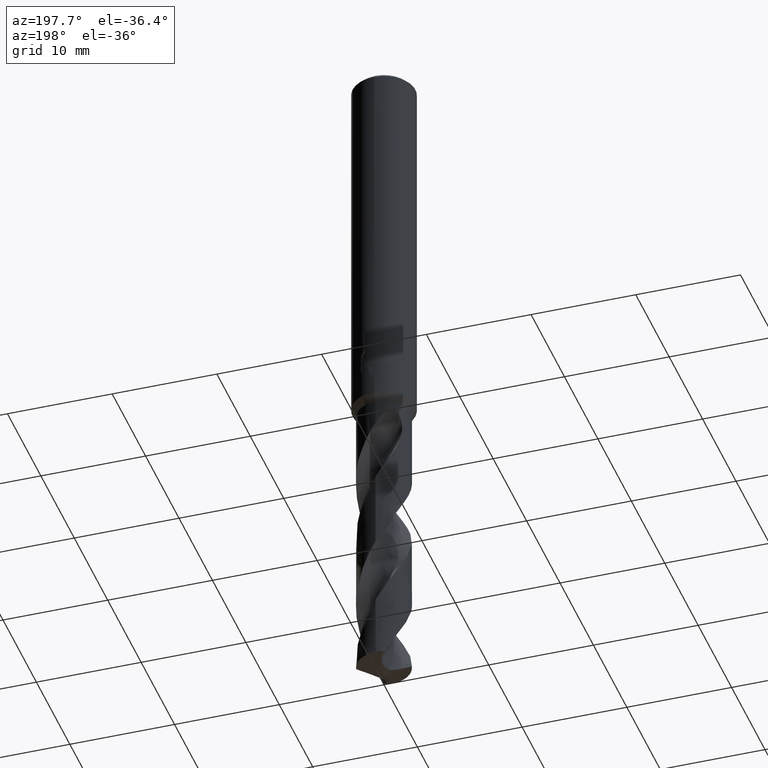
[diagram: clean part render]
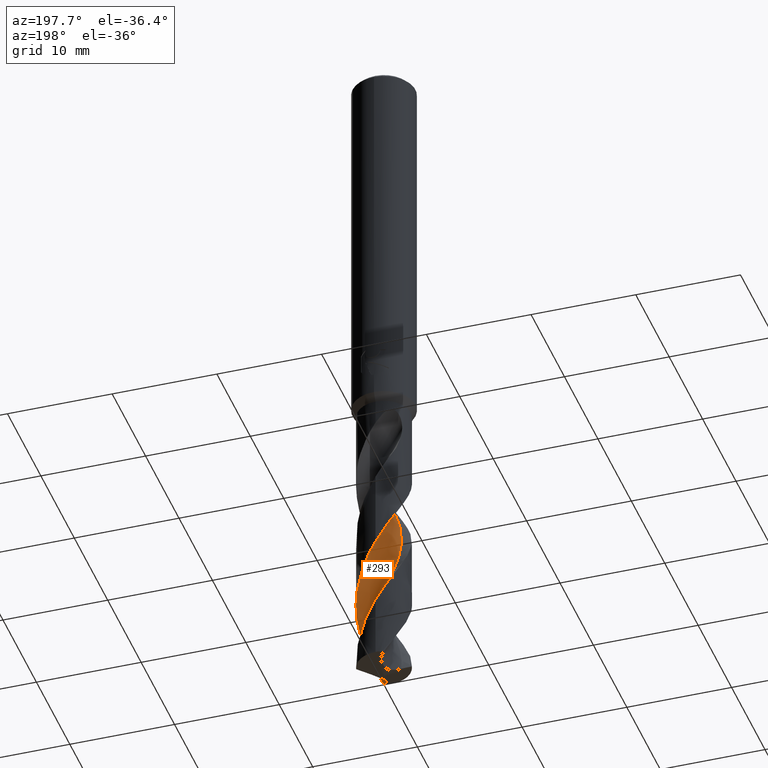
[diagram: same view with one face highlighted and labeled with its STEP entity id]
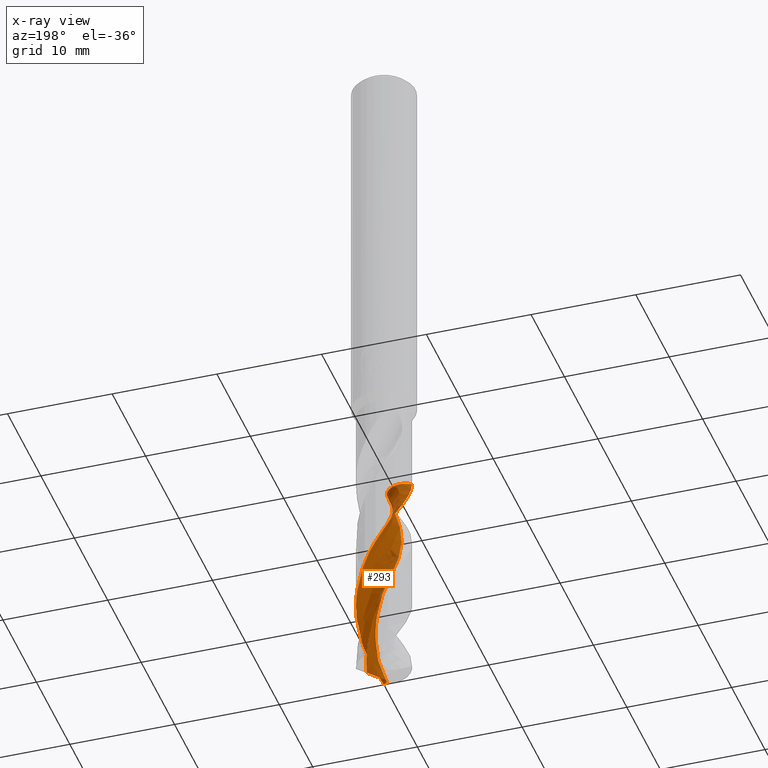
[diagram: x-ray of the same camera — body ghosted, the highlighted face saturated]
A machine part, auxiliary view. The second image highlights one B-rep face of the part: STEP entity #293.
The next image is the same camera in x-ray: the body ghosted, the highlighted face saturated — about 0% of this face is hidden behind the body in this view.
In plain terms, the highlighted face is a freeform B-spline surface patch.
Its self-contained STEP definition (entity closure, byte-faithful):
#287=EDGE_CURVE('',#509,#431,#810,.T.);
#293=ADVANCED_FACE('',(#816),#817,.F.);
#323=EDGE_CURVE('',#431,#733,#849,.T.);
#381=EDGE_CURVE('',#737,#509,#909,.T.);
#431=VERTEX_POINT('',#966);
#467=VERTEX_POINT('',#1006);
#509=VERTEX_POINT('',#1051);
#521=EDGE_CURVE('',#467,#737,#1065,.T.);
#593=EDGE_CURVE('',#733,#467,#1146,.T.);
#733=VERTEX_POINT('',#1300);
#737=VERTEX_POINT('',#1304);
#810=B_SPLINE_CURVE_WITH_KNOTS('',3,(#1374,#1375,#1376,#1377,#1378,#1379,#1380,#1381,#1382,#1383,#1384,#1385,#1386,#1387,#1388,#1389,#1390,#1391,#1392,#1393,#1394,#1395,#1396,#1397,#1398,#1399,#1400,#1401,#1402,#1403,#1404,#1405,#1406,#1407,#1408,#1409,#1410,#1411,#1412,#1413,#1414,#1415,#1416,#1417,#1418,#1419,#1420,#1421,#1422,#1423,#1424,#1425,#1426,#1427,#1428,#1429,#1430,#1431,#1432,#1433,#1434,#1435),.UNSPECIFIED.,.F.,.F.,(4,2,2,2,2,2,2,2,2,2,2,2,2,2,2,2,2,2,2,2,2,2,2,2,2,2,2,2,2,2,4),(0.0,0.973739436127836,2.32965119518938,2.54896821320102,4.15997326721761,4.19445712639335,5.87819121262056,5.97879634722335,7.05052223187904,7.43641080196372,7.83598952684722,9.37010563366563,9.58068647943678,11.09902579308,11.3326802364308,12.846458184252,13.0944793267504,14.6189399113665,14.8515527838146,16.3470004208488,16.5954426426628,17.4224008078032,17.8381561960623,18.6145384535525,19.9793050859473,20.043079232453,21.0521618834251,21.4307487667855,22.0919819568146,23.0869670029948,24.077534446617),.UNSPECIFIED.);
#816=FACE_OUTER_BOUND('',#1449,.T.);
#817=B_SPLINE_SURFACE_WITH_KNOTS('',3,3,((#1450,#1451,#1452,#1453,#1454,#1455,#1456,#1457,#1458,#1459,#1460,#1461,#1462,#1463,#1464,#1465,#1466,#1467,#1468,#1469,#1470,#1471,#1472,#1473,#1474,#1475,#1476,#1477,#1478,#1479,#1480,#1481,#1482,#1483,#1484,#1485,#1486,#1487,#1488),(#1489,#1490,#1491,#1492,#1493,#1494,#1495,#1496,#1497,#1498,#1499,#1500,#1501,#1502,#1503,#1504,#1505,#1506,#1507,#1508,#1509,#1510,#1511,#1512,#1513,#1514,#1515,#1516,#1517,#1518,#1519,#1520,#1521,#1522,#1523,#1524,#1525,#1526,#1527),(#1528,#1529,#1530,#1531,#1532,#1533,#1534,#1535,#1536,#1537,#1538,#1539,#1540,#1541,#1542,#1543,#1544,#1545,#1546,#1547,#1548,#1549,#1550,#1551,#1552,#1553,#1554,#1555,#1556,#1557,#1558,#1559,#1560,#1561,#1562,#1563,#1564,#1565,#1566),(#1567,#1568,#1569,#1570,#1571,#1572,#1573,#1574,#1575,#1576,#1577,#1578,#1579,#1580,#1581,#1582,#1583,#1584,#1585,#1586,#1587,#1588,#1589,#1590,#1591,#1592,#1593,#1594,#1595,#1596,#1597,#1598,#1599,#1600,#1601,#1602,#1603,#1604,#1605),(#1606,#1607,#1608,#1609,#1610,#1611,#1612,#1613,#1614,#1615,#1616,#1617,#1618,#1619,#1620,#1621,#1622,#1623,#1624,#1625,#1626,#1627,#1628,#1629,#1630,#1631,#1632,#1633,#1634,#1635,#1636,#1637,#1638,#1639,#1640,#1641,#1642,#1643,#1644),(#1645,#1646,#1647,#1648,#1649,#1650,#1651,#1652,#1653,#1654,#1655,#1656,#1657,#1658,#1659,#1660,#1661,#1662,#1663,#1664,#1665,#1666,#1667,#1668,#1669,#1670,#1671,#1672,#1673,#1674,#1675,#1676,#1677,#1678,#1679,#1680,#1681,#1682,#1683),(#1684,#1685,#1686,#1687,#1688,#1689,#1690,#1691,#1692,#1693,#1694,#1695,#1696,#1697,#1698,#1699,#1700,#1701,#1702,#1703,#1704,#1705,#1706,#1707,#1708,#1709,#1710,#1711,#1712,#1713,#1714,#1715,#1716,#1717,#1718,#1719,#1720,#1721,#1722),(#1723,#1724,#1725,#1726,#1727,#1728,#1729,#1730,#1731,#1732,#1733,#1734,#1735,#1736,#1737,#1738,#1739,#1740,#1741,#1742,#1743,#1744,#1745,#1746,#1747,#1748,#1749,#1750,#1751,#1752,#1753,#1754,#1755,#1756,#1757,#1758,#1759,#1760,#1761),(#1762,#1763,#1764,#1765,#1766,#1767,#1768,#1769,#1770,#1771,#1772,#1773,#1774,#1775,#1776,#1777,#1778,#1779,#1780,#1781,#1782,#1783,#1784,#1785,#1786,#1787,#1788,#1789,#1790,#1791,#1792,#1793,#1794,#1795,#1796,#1797,#1798,#1799,#1800),(#1801,#1802,#1803,#1804,#1805,#1806,#1807,#1808,#1809,#1810,#1811,#1812,#1813,#1814,#1815,#1816,#1817,#1818,#1819,#1820,#1821,#1822,#1823,#1824,#1825,#1826,#1827,#1828,#1829,#1830,#1831,#1832,#1833,#1834,#1835,#1836,#1837,#1838,#1839),(#1840,#1841,#1842,#1843,#1844,#1845,#1846,#1847,#1848,#1849,#1850,#1851,#1852,#1853,#1854,#1855,#1856,#1857,#1858,#1859,#1860,#1861,#1862,#1863,#1864,#1865,#1866,#1867,#1868,#1869,#1870,#1871,#1872,#1873,#1874,#1875,#1876,#1877,#1878)),.UNSPECIFIED.,.F.,.F.,.F.,(4,1,1,1,1,1,1,1,4),(4,1,2,2,2,2,2,2,2,2,2,2,2,2,2,2,2,2,2,4),(-5.40881827744282E-017,0.392701793329559,0.785403586659118,1.17810537998868,1.57080717331824,1.96350896664779,2.35621075997735,2.74891255330691,3.14161434663647),(0.0,0.48484074373811,0.96968148747622,1.93936297495244,2.90904446242866,3.87872594990488,5.81808892485732,7.75745189980976,9.6968148747622,11.6361778497146,13.5755408246671,15.5149037996195,17.454266774572,19.3936297495244,21.3329927244768,23.2723556994293,25.2117186743817,27.1510816493342,29.0904446242866,31.029807599239),.UNSPECIFIED.);
#849=B_SPLINE_CURVE_WITH_KNOTS('',3,(#1955,#1956,#1957,#1958,#1959,#1960,#1961,#1962,#1963,#1964,#1965,#1966,#1967,#1968,#1969,#1970,#1971,#1972,#1973,#1974),.UNSPECIFIED.,.F.,.F.,(4,2,2,2,2,2,2,2,2,4),(-5.35531806765965,-5.00114860710339,-4.64691808302809,-3.98253738823736,-3.31822643693531,-2.65423719746501,-1.99063438491092,-1.32725488938462,-0.66379863336662,-0.0),.UNSPECIFIED.);
#909=B_SPLINE_CURVE_WITH_KNOTS('',3,(#2581,#2582,#2583,#2584,#2585,#2586,#2587,#2588,#2589,#2590,#2591,#2592,#2593,#2594,#2595,#2596,#2597,#2598,#2599,#2600,#2601,#2602,#2603,#2604,#2605,#2606,#2607,#2608,#2609,#2610,#2611,#2612,#2613,#2614,#2615,#2616,#2617,#2618,#2619,#2620,#2621,#2622,#2623,#2624,#2625,#2626,#2627,#2628,#2629,#2630,#2631,#2632,#2633,#2634,#2635,#2636,#2637,#2638,#2639,#2640,#2641,#2642),.UNSPECIFIED.,.F.,.F.,(4,2,2,2,2,2,2,2,2,2,2,2,2,2,2,2,2,2,2,2,2,2,2,2,2,2,2,2,2,2,4),(0.0,0.973739436127836,2.32965119518938,2.54896821320102,4.15997326721761,4.19445712639335,5.87819121262056,5.97879634722335,7.05052223187904,7.43641080196372,7.83598952684722,9.37010563366563,9.58068647943678,11.09902579308,11.3326802364308,12.846458184252,13.0944793267504,14.6189399113665,14.8515527838146,16.3470004208488,16.5954426426628,17.4224008078032,17.8381561960623,18.6145384535525,19.9793050859473,20.043079232453,21.0521618834251,21.4307487667855,22.0919819568146,23.0869670029948,24.077534446617),.UNSPECIFIED.);
#966=CARTESIAN_POINT('',(-2.45163694437292,-0.701046672574818,-44.405));
#1006=CARTESIAN_POINT('',(1.59616637994865,0.170764390680774,-65.4157277089444));
#1051=CARTESIAN_POINT('',(-5.48515047849248E-015,2.54993953751047,-52.5731450981478));
#1065=B_SPLINE_CURVE_WITH_KNOTS('',3,(#4174,#4175,#4176,#4177,#4178,#4179,#4180,#4181,#4182,#4183,#4184,#4185,#4186,#4187,#4188,#4189,#4190,#4191,#4192,#4193),.UNSPECIFIED.,.F.,.F.,(4,2,2,2,2,2,2,2,2,4),(0.0,1.06206867309185,1.78393141241741,2.46979322490583,3.23913797733199,4.07458475473371,5.01902752822248,6.07488704052321,6.70908508049796,7.34303042592719),.UNSPECIFIED.);
#1146=B_SPLINE_CURVE_WITH_KNOTS('',3,(#4872,#4873,#4874,#4875,#4876,#4877,#4878,#4879,#4880,#4881,#4882,#4883,#4884,#4885,#4886,#4887,#4888,#4889,#4890,#4891,#4892,#4893,#4894,#4895,#4896,#4897,#4898,#4899,#4900,#4901,#4902,#4903,#4904,#4905,#4906,#4907,#4908,#4909,#4910),.UNSPECIFIED.,.F.,.F.,(4,1,2,2,2,2,2,2,2,2,2,2,2,2,2,2,2,2,2,4),(0.0,0.48484074373811,0.96968148747622,1.93936297495244,2.90904446242866,3.87872594990488,5.81808892485732,7.75745189980976,9.6968148747622,11.6361778497146,13.5755408246671,15.5149037996195,17.454266774572,19.3936297495244,21.3329927244768,23.2723556994293,25.2117186743817,27.1510816493342,29.0904446242866,31.029807599239),.UNSPECIFIED.);
#1300=CARTESIAN_POINT('',(0.242113569617448,-1.58547866104269,-44.405));
#1304=CARTESIAN_POINT('',(0.781501621102599,-2.42729380508706,-65.0718759026212));
#1374=CARTESIAN_POINT('',(0.781501621102603,-2.42729380508706,-65.0718759026212));
#1375=CARTESIAN_POINT('',(0.936654392322793,-2.3773387463327,-64.7911907336629));
#1376=CARTESIAN_POINT('',(1.08586653744853,-2.31286871900473,-64.5083894878095));
#1377=CARTESIAN_POINT('',(1.42391276664532,-2.12728008173716,-63.8378065488846));
#1378=CARTESIAN_POINT('',(1.60559432618969,-1.99374198379501,-63.4529806795277));
#1379=CARTESIAN_POINT('',(1.79373256360754,-1.8128135786547,-63.0000320620304));
#1380=CARTESIAN_POINT('',(1.81936453169177,-1.7870878503702,-62.9369175253481));
#1381=CARTESIAN_POINT('',(2.02896410577869,-1.56752095689746,-62.4103172371844));
#1382=CARTESIAN_POINT('',(2.18167503255085,-1.34675639470443,-61.9548301554897));
#1383=CARTESIAN_POINT('',(2.29981489167362,-1.10149690353406,-61.4813319198318));
#1384=CARTESIAN_POINT('',(2.30227058396431,-1.09635485363102,-61.4714174610817));
#1385=CARTESIAN_POINT('',(2.42407273754086,-0.839089902981069,-60.9763627720417));
#1386=CARTESIAN_POINT('',(2.50122522569896,-0.569237315876879,-60.5008260810699));
#1387=CARTESIAN_POINT('',(2.53508815979425,-0.275645132076071,-59.9872357369814));
#1388=CARTESIAN_POINT('',(2.53683231430039,-0.259100044384307,-59.9582911934222));
#1389=CARTESIAN_POINT('',(2.55528237098295,-0.0659746453769235,-59.6210638042064));
#1390=CARTESIAN_POINT('',(2.55371913673103,0.112170922507938,-59.3152669306704));
#1391=CARTESIAN_POINT('',(2.52626241445098,0.35278373731,-58.8967070281293));
#1392=CARTESIAN_POINT('',(2.51660157207608,0.41611801870754,-58.7859803515778));
#1393=CARTESIAN_POINT('',(2.49214181632538,0.544019140548643,-58.5602670956946));
#1394=CARTESIAN_POINT('',(2.47718934060871,0.608469475602214,-58.4451812391754));
#1395=CARTESIAN_POINT('',(2.39289682659295,0.916907266206064,-57.8900442163269));
#1396=CARTESIAN_POINT('',(2.2899444292485,1.15008178218801,-57.4567733730727));
#1397=CARTESIAN_POINT('',(2.13575751794729,1.39357441301278,-56.9560842845463));
#1398=CARTESIAN_POINT('',(2.11656399660145,1.42255727532211,-56.8956015111814));
#1399=CARTESIAN_POINT('',(1.95375463152658,1.65778330530721,-56.3988520743227));
#1400=CARTESIAN_POINT('',(1.78111890382981,1.84199215194843,-55.9695565195785));
#1401=CARTESIAN_POINT('',(1.55410510959151,2.02200724983044,-55.4664489580129));
#1402=CARTESIAN_POINT('',(1.52332984772112,2.04529237806743,-55.3992930349619));
#1403=CARTESIAN_POINT('',(1.28895527102206,2.21439051708825,-54.897404887428));
#1404=CARTESIAN_POINT('',(1.0655531196271,2.33012132861617,-54.4695135236699));
#1405=CARTESIAN_POINT('',(0.790105702992709,2.42479694101052,-53.963802999333));
#1406=CARTESIAN_POINT('',(0.751070157657841,2.43717013170732,-53.8925395966559));
#1407=CARTESIAN_POINT('',(0.469754300601046,2.51893399000189,-53.383784336762));
#1408=CARTESIAN_POINT('',(0.218843590236288,2.55298415636738,-52.9532368732472));
#1409=CARTESIAN_POINT('',(-0.0713909608392822,2.54922900167262,-52.4491913099461));
#1410=CARTESIAN_POINT('',(-0.109744731785705,2.54786572947821,-52.3824047859271));
#1411=CARTESIAN_POINT('',(-0.394743854888623,2.53128170958264,-51.8866159342418));
#1412=CARTESIAN_POINT('',(-0.637909936871401,2.48118055597771,-51.4641936930429));
#1413=CARTESIAN_POINT('',(-0.908684396783313,2.38288245959634,-50.9642127495431));
#1414=CARTESIAN_POINT('',(-0.946854102314993,2.36797307766679,-50.892909110057));
#1415=CARTESIAN_POINT('',(-1.11046211247109,2.29948227822731,-50.5848290176238));
#1416=CARTESIAN_POINT('',(-1.23207109895561,2.236712443033,-50.3490850058337));
#1417=CARTESIAN_POINT('',(-1.40670196089163,2.12792283262497,-49.9935993826759));
#1418=CARTESIAN_POINT('',(-1.46359117710635,2.0891988761234,-49.8747933347799));
#1419=CARTESIAN_POINT('',(-1.6219303879307,1.97178572301406,-49.533633174389));
#1420=CARTESIAN_POINT('',(-1.71900310912138,1.88774680379853,-49.3105739093287));
#1421=CARTESIAN_POINT('',(-1.96822699015388,1.63676673396404,-48.6978806524574));
#1422=CARTESIAN_POINT('',(-2.10494065842658,1.45664980654879,-48.3122750195936));
#1423=CARTESIAN_POINT('',(-2.22131146242342,1.25218294669021,-47.9032234653825));
#1424=CARTESIAN_POINT('',(-2.22644336820325,1.24303512232559,-47.884974498637));
#1425=CARTESIAN_POINT('',(-2.31197198212893,1.08834466670242,-47.577637845967));
#1426=CARTESIAN_POINT('',(-2.37815838371468,0.935042551241771,-47.2905400332395));
#1427=CARTESIAN_POINT('',(-2.44803434222208,0.716312670541916,-46.893727737734));
#1428=CARTESIAN_POINT('',(-2.46487920759324,0.655997593272981,-46.7855521801888));
#1429=CARTESIAN_POINT('',(-2.50498191313688,0.488922723808074,-46.4880711601987));
#1430=CARTESIAN_POINT('',(-2.52361120899432,0.38125819407664,-46.2982588623027));
#1431=CARTESIAN_POINT('',(-2.55286586530009,0.10919565771303,-45.8244515453941));
#1432=CARTESIAN_POINT('',(-2.55459051030163,-0.0555086265221823,-45.5419939333724));
#1433=CARTESIAN_POINT('',(-2.5264015655528,-0.382172497750538,-44.9740259272431));
#1434=CARTESIAN_POINT('',(-2.49673715023633,-0.543345408920365,-44.6882038466516));
#1435=CARTESIAN_POINT('',(-2.45162035553032,-0.701104673448125,-44.4048958367487));
#1449=EDGE_LOOP('',(#7298,#7299,#7300,#7301,#7302));
#1450=CARTESIAN_POINT('',(-1.20208152794642,-3.66708152794642,-41.8606));
#1451=CARTESIAN_POINT('',(-1.30349138101385,-3.66294608213439,-41.9862422635474));
#1452=CARTESIAN_POINT('',(-1.50852161293324,-3.63393677331782,-42.2387676661621));
#1453=CARTESIAN_POINT('',(-1.71337716424821,-3.55195051408445,-42.4920427460695));
#1454=CARTESIAN_POINT('',(-2.01186078911098,-3.38112895662532,-42.8687000090635));
#1455=CARTESIAN_POINT('',(-2.19955465118841,-3.25401348248367,-43.1189245227413));
#1456=CARTESIAN_POINT('',(-2.55407104208126,-2.98027596158837,-43.6214531383877));
#1457=CARTESIAN_POINT('',(-2.72012064470767,-2.83011296306287,-43.8729403910005));
#1458=CARTESIAN_POINT('',(-3.02552181228476,-2.50609801925724,-44.3769905943455));
#1459=CARTESIAN_POINT('',(-3.16408669384434,-2.33035878119049,-44.628831345414));
#1460=CARTESIAN_POINT('',(-3.5281877822512,-1.76645157307641,-45.382719535055));
#1461=CARTESIAN_POINT('',(-3.70920611409306,-1.35191583872799,-45.8854829777772));
#1462=CARTESIAN_POINT('',(-3.91630453241499,-0.481600812299769,-46.8918891174901));
#1463=CARTESIAN_POINT('',(-3.94813143071852,-0.030616169563522,-47.3950031658703));
#1464=CARTESIAN_POINT('',(-3.85116632788341,0.85866681614713,-48.4009594256309));
#1465=CARTESIAN_POINT('',(-3.73002429787826,1.29429721951031,-48.903969419026));
#1466=CARTESIAN_POINT('',(-3.34067260187198,2.09972775268707,-49.9100594507125));
#1467=CARTESIAN_POINT('',(-3.08052183400278,2.46953248434963,-50.4130928193347));
#1468=CARTESIAN_POINT('',(-2.44378709707616,3.09788565728126,-51.4191438216553));
#1469=CARTESIAN_POINT('',(-2.07475442853537,3.35913883109585,-51.9221728212514));
#1470=CARTESIAN_POINT('',(-1.26423288618522,3.73775210176843,-52.9282298636687));
#1471=CARTESIAN_POINT('',(-0.828977238764015,3.86020808280583,-53.4312597217525));
#1472=CARTESIAN_POINT('',(0.0615641295693968,3.94526771587903,-54.4373199963154));
#1473=CARTESIAN_POINT('',(0.512683435718697,3.91476419030396,-54.9403489471673));
#1474=CARTESIAN_POINT('',(1.3802218112718,3.69647057817027,-55.9464106694114));
#1475=CARTESIAN_POINT('',(1.79502898207068,3.5165520608674,-56.4494401070354));
#1476=CARTESIAN_POINT('',(2.53924209049942,3.02014270644842,-57.4554968187327));
#1477=CARTESIAN_POINT('',(2.86976933318261,2.71161287069444,-57.9585274114222));
#1478=CARTESIAN_POINT('',(3.40457253286236,1.9944876888434,-58.9645858928623));
#1479=CARTESIAN_POINT('',(3.61257009555661,1.59301762591955,-59.4676107699854));
#1480=CARTESIAN_POINT('',(3.87609360911204,0.738102061726109,-60.473660851687));
#1481=CARTESIAN_POINT('',(3.93754069393617,0.290132556700374,-60.9767109827951));
#1482=CARTESIAN_POINT('',(3.89925423303863,-0.603594950381508,-61.9828060261193));
#1483=CARTESIAN_POINT('',(3.80695778472295,-1.04612544669751,-62.4857458424195));
#1484=CARTESIAN_POINT('',(3.47197164581853,-1.87558777838338,-63.4916954081419));
#1485=CARTESIAN_POINT('',(3.23665667772898,-2.26213654776372,-63.9950201461653));
#1486=CARTESIAN_POINT('',(2.64009653091144,-2.92942761886629,-65.001042943783));
#1487=CARTESIAN_POINT('',(2.29031978122729,-3.21332628102084,-65.5030510193266));
#1488=CARTESIAN_POINT('',(1.90320118412064,-3.43283692938004,-66.0059349555905));
#1489=CARTESIAN_POINT('',(-1.35942855742924,-3.50972217661457,-41.8606));
#1490=CARTESIAN_POINT('',(-1.46105291410976,-3.50580121797466,-41.9862484444172));
#1491=CARTESIAN_POINT('',(-1.66377792147787,-3.47441425059251,-42.2389202592531));
#1492=CARTESIAN_POINT('',(-1.86040891436461,-3.38473921880621,-42.4924178047704));
#1493=CARTESIAN_POINT('',(-2.14122834065788,-3.19942600203509,-42.8689717932662));
#1494=CARTESIAN_POINT('',(-2.31719887047524,-3.06468435341981,-43.1190256921117));
#1495=CARTESIAN_POINT('',(-2.64910777622979,-2.77864856462025,-43.6214910841967));
#1496=CARTESIAN_POINT('',(-2.80368128072068,-2.62349822507038,-43.8729722027192));
#1497=CARTESIAN_POINT('',(-3.08575283013506,-2.29151905914263,-44.3771625208101));
#1498=CARTESIAN_POINT('',(-3.21210297874282,-2.1126875771185,-44.6290491518197));
#1499=CARTESIAN_POINT('',(-3.53801101021891,-1.54264702403191,-45.3828470889249));
#1500=CARTESIAN_POINT('',(-3.69379262226722,-1.12845244802663,-45.8855731234865));
#1501=CARTESIAN_POINT('',(-3.85062670840688,-0.267452092828678,-46.8920271844343));
#1502=CARTESIAN_POINT('',(-3.85878324442299,0.174792382179292,-47.3951531158917));
#1503=CARTESIAN_POINT('',(-3.71750055956682,1.03841395625411,-48.4010952007074));
#1504=CARTESIAN_POINT('',(-3.57699769255462,1.45787704500276,-48.9041024609921));
#1505=CARTESIAN_POINT('',(-3.15449881979298,2.22428545795643,-49.9101967917606));
#1506=CARTESIAN_POINT('',(-2.88152235535958,2.57236538022337,-50.413230713118));
#1507=CARTESIAN_POINT('',(-2.22663661647891,3.15284803546684,-51.4192806331523));
#1508=CARTESIAN_POINT('',(-1.85280030299005,3.38933643476831,-51.9223095707324));
#1509=CARTESIAN_POINT('',(-1.04122026203463,3.71675936454162,-52.9283663425781));
#1510=CARTESIAN_POINT('',(-0.60973907888618,3.81427121398032,-53.4313962709374));
#1511=CARTESIAN_POINT('',(0.264642483946424,3.85074498317831,-54.4374567258814));
#1512=CARTESIAN_POINT('',(0.703845501931202,3.79800585720167,-54.9404856003674));
#1513=CARTESIAN_POINT('',(1.53987834499428,3.53935586117889,-55.9465477435006));
#1514=CARTESIAN_POINT('',(1.93600718641281,3.34248140681858,-56.4495771951852));
#1515=CARTESIAN_POINT('',(2.6370119360829,2.81860784105345,-57.4556335461204));
#1516=CARTESIAN_POINT('',(2.94425861687571,2.5003621784995,-57.9586641776422));
#1517=CARTESIAN_POINT('',(3.4291455822388,1.77184116766942,-58.9647228995903));
#1518=CARTESIAN_POINT('',(3.61194999856623,1.36901944958267,-59.4677474136857));
#1519=CARTESIAN_POINT('',(3.82462266340828,0.520097226474963,-60.4737954510686));
#1520=CARTESIAN_POINT('',(3.86188579678873,0.0792960575094635,-60.9768472164644));
#1521=CARTESIAN_POINT('',(3.77769374666446,-0.791739936923859,-61.9829510383335));
#1522=CARTESIAN_POINT('',(3.66501515476982,-1.21940458401947,-62.4858833339644));
#1523=CARTESIAN_POINT('',(3.29444023115103,-2.01217390954504,-63.4918084279896));
#1524=CARTESIAN_POINT('',(3.04485171811665,-2.37788314004758,-63.9951600409428));
#1525=CARTESIAN_POINT('',(2.42688941870652,-2.99819479092808,-65.0012270920471));
#1526=CARTESIAN_POINT('',(2.0709102725147,-3.25794049554441,-65.5031566658446));
#1527=CARTESIAN_POINT('',(1.68157037848671,-3.45283248510972,-66.0060648934245));
#1528=CARTESIAN_POINT('',(-1.61148014498556,-3.13249845960361,-41.8605999999999));
#1529=CARTESIAN_POINT('',(-1.71361871136717,-3.12892108375038,-41.986258609634));
#1530=CARTESIAN_POINT('',(-1.91078872540111,-3.09369652569258,-42.2391712256953));
#1531=CARTESIAN_POINT('',(-2.0879166498582,-2.99191759474551,-42.493034656538));
#1532=CARTESIAN_POINT('',(-2.32765222265909,-2.78465167661192,-42.8694187896166));
#1533=CARTESIAN_POINT('',(-2.47714832490377,-2.63932292048119,-43.1191920846299));
#1534=CARTESIAN_POINT('',(-2.75896120024785,-2.3376859841005,-43.6215534914615));
#1535=CARTESIAN_POINT('',(-2.88860404443321,-2.17712670673868,-43.873024523118));
#1536=CARTESIAN_POINT('',(-3.12085912008787,-1.83849975260696,-44.3774452842799));
#1537=CARTESIAN_POINT('',(-3.22155525617625,-1.65834241723156,-44.6294073720831));
#1538=CARTESIAN_POINT('',(-3.46865426144131,-1.09122582726829,-45.3830568766849));
#1539=CARTESIAN_POINT('',(-3.57410871468672,-0.687749172315502,-45.8857213634744));
#1540=CARTESIAN_POINT('',(-3.63413941735196,0.134637444785607,-46.8922542809488));
#1541=CARTESIAN_POINT('',(-3.59844084977868,0.549992417592643,-47.3953997342155));
#1542=CARTESIAN_POINT('',(-3.37874627485992,1.34467843922746,-48.4013185083852));
#1543=CARTESIAN_POINT('',(-3.2059590570944,1.72411460353835,-48.9043212665501));
#1544=CARTESIAN_POINT('',(-2.73269749797791,2.39931374475245,-49.9104226794073));
#1545=CARTESIAN_POINT('',(-2.44271421614216,2.69885286735893,-50.4134575185109));
#1546=CARTESIAN_POINT('',(-1.77057051819005,3.17639666659941,-51.4195056297088));
#1547=CARTESIAN_POINT('',(-1.39697700496077,3.36145569270369,-51.9225344538665));
#1548=CARTESIAN_POINT('',(-0.603636978211518,3.58609856811574,-52.9285908323755));
#1549=CARTESIAN_POINT('',(-0.189622534667352,3.63523360289334,-53.4316208417657));
#1550=CARTESIAN_POINT('',(0.633125370794605,3.58098233003657,-54.4376816108122));
#1551=CARTESIAN_POINT('',(1.0396585202272,3.4885200150406,-54.9407103673153));
#1552=CARTESIAN_POINT('',(1.79664526829607,3.16170288766844,-55.946773170014));
#1553=CARTESIAN_POINT('',(2.14868255153131,2.93835139620585,-56.449802672327));
#1554=CARTESIAN_POINT('',(2.75236723039742,2.37674339215326,-57.4558584075855));
#1555=CARTESIAN_POINT('',(3.00919894488309,2.04832800238676,-57.958889193523));
#1556=CARTESIAN_POINT('',(3.38974277179734,1.31687006578287,-58.964948152279));
#1557=CARTESIAN_POINT('',(3.52163397814973,0.92136400675398,-59.4679722240377));
#1558=CARTESIAN_POINT('',(3.63500971029996,0.104647511962267,-60.4740167484753));
#1559=CARTESIAN_POINT('',(3.62676569979461,-0.312202904191708,-60.9770713140007));
#1560=CARTESIAN_POINT('',(3.45980541997704,-1.11961042914471,-61.9831894999482));
#1561=CARTESIAN_POINT('',(3.31228273211884,-1.50944438117736,-62.4861094215392));
#1562=CARTESIAN_POINT('',(2.8851367365244,-2.21469074150418,-63.4919943511768));
#1563=CARTESIAN_POINT('',(2.61529426838219,-2.53305359717374,-63.9953901030376));
#1564=CARTESIAN_POINT('',(1.97321870335662,-3.05091532983231,-65.0015299766595));
#1565=CARTESIAN_POINT('',(1.61444217665748,-3.25989881092834,-65.5033304681939));
#1566=CARTESIAN_POINT('',(1.23045057440991,-3.40468051563209,-66.0062785994106));
#1567=CARTESIAN_POINT('',(-1.74426010673492,-2.46500067907774,-41.8605999999998));
#1568=CARTESIAN_POINT('',(-1.84730856898942,-2.46160430147969,-41.9862649557899));
#1569=CARTESIAN_POINT('',(-2.03457672495306,-2.42425000883279,-42.2393278941945));
#1570=CARTESIAN_POINT('',(-2.17772692259703,-2.31689119071441,-42.4934197324157));
#1571=CARTESIAN_POINT('',(-2.34792074481406,-2.10278482408783,-42.8696978327423));
#1572=CARTESIAN_POINT('',(-2.4546473305822,-1.95798101951422,-43.1192959562932));
#1573=CARTESIAN_POINT('',(-2.65807455686152,-1.66347977029748,-43.62159245051));
#1574=CARTESIAN_POINT('',(-2.7500601667282,-1.50973561824468,-43.8730571840811));
#1575=CARTESIAN_POINT('',(-2.90945681168973,-1.19049248163999,-44.3776218030049));
#1576=CARTESIAN_POINT('',(-2.97383713393662,-1.02322426732542,-44.6296309980727));
#1577=CARTESIAN_POINT('',(-3.11339055143311,-0.505400840281296,-45.3831878326245));
#1578=CARTESIAN_POINT('',(-3.15524763028958,-0.145669008496823,-45.8858139159042));
#1579=CARTESIAN_POINT('',(-3.10328169044287,0.567631301514836,-46.8923960363486));
#1580=CARTESIAN_POINT('',(-3.02223888218877,0.920544065128704,-47.3955536953321));
#1581=CARTESIAN_POINT('',(-2.73344339993853,1.57467741791855,-48.4014579036057));
#1582=CARTESIAN_POINT('',(-2.5388898253103,1.88010599123948,-48.9044578526005));
#1583=CARTESIAN_POINT('',(-2.0476335793121,2.39975473026323,-49.9105636978463));
#1584=CARTESIAN_POINT('',(-1.7619450010654,2.62225673502435,-50.4135990890584));
#1585=CARTESIAN_POINT('',(-1.12497532962851,2.94722718574351,-51.4196461013589));
#1586=CARTESIAN_POINT('',(-0.781241529924763,3.06114793643197,-51.9226748477987));
#1587=CARTESIAN_POINT('',(-0.0721821798978326,3.15381529316215,-52.9287309643039));
#1588=CARTESIAN_POINT('',(0.289853670222365,3.1459301731358,-53.4317610442531));
#1589=CARTESIAN_POINT('',(0.988959748330647,2.99558051036059,-54.4378219858939));
#1590=CARTESIAN_POINT('',(1.32741143021092,2.86681879763454,-54.940850672744));
#1591=CARTESIAN_POINT('',(1.93571402132931,2.49090326948647,-55.9469139026687));
#1592=CARTESIAN_POINT('',(2.21144412406332,2.25616729284928,-56.4499434195159));
#1593=CARTESIAN_POINT('',(2.65858814006308,1.69812881254685,-57.4559987890878));
#1594=CARTESIAN_POINT('',(2.83971013555864,1.38455975796339,-57.9590296376748));
#1595=CARTESIAN_POINT('',(3.07395539412984,0.708929945712328,-58.9650887930944));
#1596=CARTESIAN_POINT('',(3.13948390385359,0.352789809866054,-59.468112552545));
#1597=CARTESIAN_POINT('',(3.13372854841031,-0.362289949400544,-60.4741549075053));
#1598=CARTESIAN_POINT('',(3.07616370973678,-0.719822712573491,-60.9772111889009));
#1599=CARTESIAN_POINT('',(2.83101834352172,-1.39153205982719,-61.9833383825357));
#1600=CARTESIAN_POINT('',(2.65692092768499,-1.70893282704343,-62.4862505823381));
#1601=CARTESIAN_POINT('',(2.20161408986158,-2.26040339974486,-63.4921103925061));
#1602=CARTESIAN_POINT('',(1.93088033859206,-2.50152052560771,-63.9955337309003));
#1603=CARTESIAN_POINT('',(1.31419705382569,-2.86355126911459,-65.0017190464826));
#1604=CARTESIAN_POINT('',(0.980683875666079,-3.00057582789855,-65.5034389710712));
#1605=CARTESIAN_POINT('',(0.632870601951451,-3.07897825287071,-66.0064120076621));
#1606=CARTESIAN_POINT('',(-1.61149064396106,-1.79750081016051,-41.8606));
#1607=CARTESIAN_POINT('',(-1.71544900477771,-1.79392344828108,-41.9862614316573));
#1608=CARTESIAN_POINT('',(-1.89275398474066,-1.75839087381842,-42.23924089376));
#1609=CARTESIAN_POINT('',(-2.00237820194973,-1.65887943888069,-42.4932058935768));
#1610=CARTESIAN_POINT('',(-2.10570582596066,-1.46506606200782,-42.8695428759031));
#1611=CARTESIAN_POINT('',(-2.17311921743762,-1.33711467855398,-43.1192382732301));
#1612=CARTESIAN_POINT('',(-2.30685832156415,-1.07920304745677,-43.6215708174188));
#1613=CARTESIAN_POINT('',(-2.36666125993341,-0.946166155975552,-43.8730390463791));
#1614=CARTESIAN_POINT('',(-2.4661635789546,-0.672713103827712,-44.3775237799162));
#1615=CARTESIAN_POINT('',(-2.50192503871978,-0.53125034047454,-44.6295068148985));
#1616=CARTESIAN_POINT('',(-2.56098309076379,-0.100124093570075,-45.3831151109689));
#1617=CARTESIAN_POINT('',(-2.56082444258463,0.194854983214225,-45.88576252894));
#1618=CARTESIAN_POINT('',(-2.44713301193788,0.764513312296981,-46.8923173084698));
#1619=CARTESIAN_POINT('',(-2.34809338314101,1.04238448017736,-47.3954681994984));
#1620=CARTESIAN_POINT('',(-2.04924455469792,1.54022027817213,-48.401380494025));
#1621=CARTESIAN_POINT('',(-1.86290317769007,1.76894514724718,-48.9043820042304));
#1622=CARTESIAN_POINT('',(-1.41454895186128,2.1379978969844,-49.9104853880525));
#1623=CARTESIAN_POINT('',(-1.16230917251305,2.29097048405483,-50.4135204743756));
#1624=CARTESIAN_POINT('',(-0.616223690484013,2.48844228933358,-51.4195680935471));
#1625=CARTESIAN_POINT('',(-0.327300248624141,2.54806679741267,-51.9225968956976));
#1626=CARTESIAN_POINT('',(0.253388831234596,2.55105783154043,-52.9286531359586));
#1627=CARTESIAN_POINT('',(0.545581964343052,2.51038447470795,-53.4316831808905));
#1628=CARTESIAN_POINT('',(1.0936825261021,2.31856755429098,-54.4377440400926));
#1629=CARTESIAN_POINT('',(1.35534392973406,2.18232341255065,-54.9407727630988));
#1630=CARTESIAN_POINT('',(1.80749115717914,1.81794624678218,-55.9468357474179));
#1631=CARTESIAN_POINT('',(2.00836601588894,1.60189406203094,-56.4498652670763));
#1632=CARTESIAN_POINT('',(2.31225146360632,1.10705928289441,-57.4559208263183));
#1633=CARTESIAN_POINT('',(2.42910835694532,0.836179472320641,-57.9589516618675));
#1634=CARTESIAN_POINT('',(2.54955614578131,0.268114458912661,-58.9650106779711));
#1635=CARTESIAN_POINT('',(2.56883835955728,-0.0262602816464413,-59.468034630911));
#1636=CARTESIAN_POINT('',(2.49191528305345,-0.601850261922963,-60.4740781805973));
#1637=CARTESIAN_POINT('',(2.41148401165615,-0.885706335828759,-60.977133510861));
#1638=CARTESIAN_POINT('',(2.14603489636066,-1.40212673457891,-61.9832557089703));
#1639=CARTESIAN_POINT('',(1.97510480970481,-1.6424382539451,-62.486172175102));
#1640=CARTESIAN_POINT('',(1.55262859465303,-2.04106188881471,-63.4920459713269));
#1641=CARTESIAN_POINT('',(1.31063224023863,-2.21047229832741,-63.9954539588165));
#1642=CARTESIAN_POINT('',(0.77704261197493,-2.43825143379,-65.0016140662781));
#1643=CARTESIAN_POINT('',(0.494407437774795,-2.51846254468858,-65.5033787111097));
#1644=CARTESIAN_POINT('',(0.205420924916461,-2.54938352728844,-66.0063379239496));
#1645=CARTESIAN_POINT('',(-1.2333849793632,-1.23162104232202,-41.8606));
#1646=CARTESIAN_POINT('',(-1.33811471567735,-1.22752826923735,-41.9862485741576));
#1647=CARTESIAN_POINT('',(-1.50691202555867,-1.19749151838978,-42.2389234693586));
#1648=CARTESIAN_POINT('',(-1.58856610530611,-1.11806003011318,-42.4924256955761));
#1649=CARTESIAN_POINT('',(-1.63788299392076,-0.968583612671803,-42.8689775100232));
#1650=CARTESIAN_POINT('',(-1.67542467465992,-0.871246462420685,-43.119027820972));
#1651=CARTESIAN_POINT('',(-1.75878270957405,-0.6738078587296,-43.6214918819871));
#1652=CARTESIAN_POINT('',(-1.79677713283454,-0.572217826347706,-43.8729728711412));
#1653=CARTESIAN_POINT('',(-1.85846771307686,-0.363989915434189,-44.3771661385527));
#1654=CARTESIAN_POINT('',(-1.87766429082987,-0.257320222878204,-44.6290537309303));
#1655=CARTESIAN_POINT('',(-1.89553204961492,0.0629038500096779,-45.382849778383));
#1656=CARTESIAN_POINT('',(-1.88133592985522,0.281980407306176,-45.8855750116542));
#1657=CARTESIAN_POINT('',(-1.76558742916036,0.695309565030191,-46.8920300973134));
#1658=CARTESIAN_POINT('',(-1.67863828362795,0.896964315578183,-47.3951562625943));
#1659=CARTESIAN_POINT('',(-1.43031424025012,1.24655287426134,-48.401098064975));
#1660=CARTESIAN_POINT('',(-1.28091335504869,1.40755553756937,-48.9041052676798));
#1661=CARTESIAN_POINT('',(-0.929826326527524,1.65389388872052,-49.9101996732866));
#1662=CARTESIAN_POINT('',(-0.735097089664915,1.75543013042234,-50.4132336313614));
#1663=CARTESIAN_POINT('',(-0.321769486323665,1.86988877128678,-51.4192834940546));
#1664=CARTESIAN_POINT('',(-0.104262546053398,1.90032529822191,-51.9223124374348));
#1665=CARTESIAN_POINT('',(0.323510142154896,1.86959178833427,-52.9283692239465));
#1666=CARTESIAN_POINT('',(0.5386295016573,1.82535389635134,-53.4313991336695));
#1667=CARTESIAN_POINT('',(0.931350393869735,1.65301395394631,-54.4374596122795));
#1668=CARTESIAN_POINT('',(1.11920349642157,1.53924350206272,-54.94048848451));
#1669=CARTESIAN_POINT('',(1.43149770524568,1.24528481829057,-55.9465506179256));
#1670=CARTESIAN_POINT('',(1.57036544060694,1.07514023519083,-56.4495800853017));
#1671=CARTESIAN_POINT('',(1.76608454818756,0.693521002561877,-57.4556364164304));
#1672=CARTESIAN_POINT('',(1.83990486225536,0.486674207237302,-57.9586670945353));
#1673=CARTESIAN_POINT('',(1.89638114459393,0.061534685854568,-58.9647257422307));
#1674=CARTESIAN_POINT('',(1.89657414009294,-0.158078536280259,-59.4677502966086));
#1675=CARTESIAN_POINT('',(1.80728149853898,-0.577562046945094,-60.4737982744521));
#1676=CARTESIAN_POINT('',(1.73391945173043,-0.784599148161607,-60.976850102325));
#1677=CARTESIAN_POINT('',(1.50913901254684,-1.14978149183994,-61.9829540692191));
#1678=CARTESIAN_POINT('',(1.37063610370149,-1.32008399292938,-62.4858862147553));
#1679=CARTESIAN_POINT('',(1.03698376918031,-1.590059423574,-63.4918108173564));
#1680=CARTESIAN_POINT('',(0.848978416534646,-1.70421896431729,-63.9951629857138));
#1681=CARTESIAN_POINT('',(0.443533381534331,-1.83976476040348,-65.0012309643691));
#1682=CARTESIAN_POINT('',(0.229645046071286,-1.88695733958026,-65.5031589076062));
#1683=CARTESIAN_POINT('',(0.0131777689216819,-1.89652343418854,-66.0060676270019));
#1684=CARTESIAN_POINT('',(-0.667507057559666,-0.853512614929571,-41.8606000000001));
#1685=CARTESIAN_POINT('',(-0.772752210357501,-0.848648469855926,-41.9862283411382));
#1686=CARTESIAN_POINT('',(-0.935792588717395,-0.826944950358615,-42.2384239468941));
#1687=CARTESIAN_POINT('',(-0.999290631579044,-0.776768938040049,-42.491197917209));
#1688=CARTESIAN_POINT('',(-1.01567500578547,-0.688923461228926,-42.8680878098993));
#1689=CARTESIAN_POINT('',(-1.03733421633741,-0.631301548435264,-43.1186966361247));
#1690=CARTESIAN_POINT('',(-1.09728840332478,-0.509012790382278,-43.6213676648616));
#1691=CARTESIAN_POINT('',(-1.12716865516935,-0.44482165187027,-43.872868734749));
#1692=CARTESIAN_POINT('',(-1.17888666740561,-0.311323860955042,-44.3766033256491));
#1693=CARTESIAN_POINT('',(-1.19609422722175,-0.243137863825293,-44.6283407312752));
#1694=CARTESIAN_POINT('',(-1.21834769487585,-0.0411368673462154,-45.382432217423));
#1695=CARTESIAN_POINT('',(-1.220229467757,0.102443022217922,-45.8852799311982));
#1696=CARTESIAN_POINT('',(-1.16240549438038,0.370555851243204,-46.8915781098175));
#1697=CARTESIAN_POINT('',(-1.11579344023558,0.506422773029933,-47.3946653964862));
#1698=CARTESIAN_POINT('',(-0.970880273955012,0.738384017735943,-48.4006535926578));
#1699=CARTESIAN_POINT('',(-0.881524226101655,0.850956197971531,-48.9036697427445));
#1700=CARTESIAN_POINT('',(-0.667261348879461,1.02114416335425,-49.9097500830311));
#1701=CARTESIAN_POINT('',(-0.545348811999864,1.09716794852785,-50.4127822026253));
#1702=CARTESIAN_POINT('',(-0.286441305690174,1.18573708248327,-51.4188356583961));
#1703=CARTESIAN_POINT('',(-0.146084359068674,1.2165375512689,-51.9218648110187));
#1704=CARTESIAN_POINT('',(0.127506278983507,1.21316560880422,-52.9279224206671));
#1705=CARTESIAN_POINT('',(0.270054753433396,1.19512956839768,-53.4309521444499));
#1706=CARTESIAN_POINT('',(0.526677276705917,1.10024558012686,-54.4370120069447));
#1707=CARTESIAN_POINT('',(0.654940853769045,1.03548348219791,-54.9400411130144));
#1708=CARTESIAN_POINT('',(0.864976047475149,0.860102689268108,-55.9461019265473));
#1709=CARTESIAN_POINT('',(0.964124928838978,0.756100391045851,-56.4491312935435));
#1710=CARTESIAN_POINT('',(1.10323748468363,0.520472293860796,-57.4551888564205));
#1711=CARTESIAN_POINT('',(1.16180176538854,0.389253708661113,-57.9582192568477));
#1712=CARTESIAN_POINT('',(1.21387171890402,0.120640940825422,-58.9642773675597));
#1713=CARTESIAN_POINT('',(1.22503877934689,-0.0225965553277222,-59.4673029092205));
#1714=CARTESIAN_POINT('',(1.18405789787953,-0.293123006232783,-60.4733577311533));
#1715=CARTESIAN_POINT('',(1.14662449425524,-0.431894018271377,-60.9764040891426));
#1716=CARTESIAN_POINT('',(1.01729364275854,-0.672914124942007,-61.9824794069352));
#1717=CARTESIAN_POINT('',(0.935540956445527,-0.79094622578085,-62.4854361885173));
#1718=CARTESIAN_POINT('',(0.733182922671932,-0.976057978337324,-63.4914407793771));
#1719=CARTESIAN_POINT('',(0.616202430970326,-1.0598340548782,-63.9947050420032));
#1720=CARTESIAN_POINT('',(0.364443816114712,-1.1592066620623,-65.0006281335393));
#1721=CARTESIAN_POINT('',(0.226704917136121,-1.20220247274738,-65.5028130244586));
#1722=CARTESIAN_POINT('',(0.0854088107615893,-1.21979135949875,-66.0056422676372));
#1723=CARTESIAN_POINT('',(-7.83687134026101E-006,-0.720739893218722,-41.8606));
#1724=CARTESIAN_POINT('',(-0.105433978616334,-0.714965849272698,-41.986203812645));
#1725=CARTESIAN_POINT('',(-0.26634461671322,-0.703164294988585,-42.2378183748694));
#1726=CARTESIAN_POINT('',(-0.324264852499945,-0.686965347493442,-42.4897094800396));
#1727=CARTESIAN_POINT('',(-0.333808679407837,-0.668661907900951,-42.8670092243774));
#1728=CARTESIAN_POINT('',(-0.355992655314722,-0.65380986941894,-43.1182951386558));
#1729=CARTESIAN_POINT('',(-0.423083286769609,-0.609906742918648,-43.6212170778417));
#1730=CARTESIAN_POINT('',(-0.459779039338517,-0.583372810759232,-43.8727424898841));
#1731=CARTESIAN_POINT('',(-0.53088190414199,-0.52273297796349,-44.3759210268902));
#1732=CARTESIAN_POINT('',(-0.560979125287476,-0.490862431186623,-44.6274763608931));
#1733=CARTESIAN_POINT('',(-0.632526613038064,-0.396406767953,-45.3819260073313));
#1734=CARTESIAN_POINT('',(-0.678153892961453,-0.316423859669163,-45.8849222179219));
#1735=CARTESIAN_POINT('',(-0.729417442449187,-0.160306346446147,-46.8910301515078));
#1736=CARTESIAN_POINT('',(-0.745248061522875,-0.0697829326106258,-47.3940703250967));
#1737=CARTESIAN_POINT('',(-0.740888250684333,0.0930788703500798,-48.4001147518832));
#1738=CARTESIAN_POINT('',(-0.725540015745466,0.183885489470498,-48.9031417708939));
#1739=CARTESIAN_POINT('',(-0.666827679940409,0.336080441907345,-49.909205028425));
#1740=CARTESIAN_POINT('',(-0.621952193882022,0.416399758574804,-50.4122349415001));
#1741=CARTESIAN_POINT('',(-0.515617611795944,0.540144531566632,-51.4182927399575));
#1742=CARTESIAN_POINT('',(-0.446398603894099,0.600805466785704,-51.9213221464691));
#1743=CARTESIAN_POINT('',(-0.30478254516561,0.681715585432356,-52.9273807667656));
#1744=CARTESIAN_POINT('',(-0.219253661187629,0.715658736404828,-53.430410261982));
#1745=CARTESIAN_POINT('',(-0.0587281627752248,0.744417557444684,-54.4364693711012));
#1746=CARTESIAN_POINT('',(0.0332367444679977,0.747737293578153,-54.93949878848));
#1747=CARTESIAN_POINT('',(0.194175146120948,0.721041147886959,-55.9455579527307));
#1748=CARTESIAN_POINT('',(0.281940360005131,0.693346116375336,-56.44858725699));
#1749=CARTESIAN_POINT('',(0.424624106564315,0.614258612668657,-57.4546462443973));
#1750=CARTESIAN_POINT('',(0.498035523665362,0.55874956047131,-57.9576763972429));
#1751=CARTESIAN_POINT('',(0.605935157780848,0.43643471573016,-58.9637337475973));
#1752=CARTESIAN_POINT('',(0.656468835376087,0.359559478227518,-59.4667605475539));
#1753=CARTESIAN_POINT('',(0.717125925011751,0.208163002737955,-60.4728236531267));
#1754=CARTESIAN_POINT('',(0.739010695892172,0.118712163695434,-60.9758633862963));
#1755=CARTESIAN_POINT('',(0.745378802374276,-0.0441243579754163,-61.981903973552));
#1756=CARTESIAN_POINT('',(0.736059568487887,-0.135582483507137,-62.4848905788611));
#1757=CARTESIAN_POINT('',(0.687477605022001,-0.292534977070662,-63.4909922239582));
#1758=CARTESIAN_POINT('',(0.647742801757582,-0.37542067176343,-63.9941498927884));
#1759=CARTESIAN_POINT('',(0.55181474781728,-0.500187349095236,-64.9998973042111));
#1760=CARTESIAN_POINT('',(0.486034674941761,-0.568447078209553,-65.5023936731188));
#1761=CARTESIAN_POINT('',(0.411117379181702,-0.622215031488182,-66.0051266038491));
#1762=CARTESIAN_POINT('',(0.667498459663865,-0.853508728464158,-41.8606));
#1763=CARTESIAN_POINT('',(0.562253300469671,-0.846824776273508,-41.9861787224636));
#1764=CARTESIAN_POINT('',(0.399521091695787,-0.844986527110543,-42.2371989408064));
#1765=CARTESIAN_POINT('',(0.333751635429198,-0.862313876570728,-42.4881869712741));
#1766=CARTESIAN_POINT('',(0.303915688272631,-0.910877161958106,-42.8659059488645));
#1767=CARTESIAN_POINT('',(0.264879984890192,-0.935338813139213,-43.1178844524203));
#1768=CARTESIAN_POINT('',(0.161199704231198,-0.961124560364058,-43.6210630418701));
#1769=CARTESIAN_POINT('',(0.103796637851279,-0.966773675576111,-43.8726133532155));
#1770=CARTESIAN_POINT('',(-0.0130968871082558,-0.96602869780006,-44.375223111632));
#1771=CARTESIAN_POINT('',(-0.0689999373272989,-0.962777185269275,-44.62659220198));
#1772=CARTESIAN_POINT('',(-0.227244777457476,-0.948818010528507,-45.3814082142334));
#1773=CARTESIAN_POINT('',(-0.337625249669438,-0.910851444920231,-45.8845563008557));
#1774=CARTESIAN_POINT('',(-0.532531970286965,-0.81646026129506,-46.8904696653364));
#1775=CARTESIAN_POINT('',(-0.623404806558628,-0.7439339750322,-47.3934616118574));
#1776=CARTESIAN_POINT('',(-0.775343875186236,-0.591126054879565,-48.399563596669));
#1777=CARTESIAN_POINT('',(-0.83670003968425,-0.492107384780846,-48.9026017151839));
#1778=CARTESIAN_POINT('',(-0.928585125462483,-0.297010422329131,-49.9086474951222));
#1779=CARTESIAN_POINT('',(-0.953239756365145,-0.183242197567758,-50.4116751658888));
#1780=CARTESIAN_POINT('',(-0.974405173015892,0.0313872214307521,-51.4177373808016));
#1781=CARTESIAN_POINT('',(-0.959483028093932,0.146858852127335,-51.9207670441194));
#1782=CARTESIAN_POINT('',(-0.907544425215751,0.35614012009152,-52.9268267296214));
#1783=CARTESIAN_POINT('',(-0.854804251020964,0.459926515654184,-53.429855975636));
#1784=CARTESIAN_POINT('',(-0.73574676569012,0.639692066792388,-54.435914313523));
#1785=CARTESIAN_POINT('',(-0.651264559972679,0.719802733182745,-54.9389440427938));
#1786=CARTESIAN_POINT('',(-0.478788109725051,0.849263349516535,-55.9450015337046));
#1787=CARTESIAN_POINT('',(-0.372339137013885,0.896424274263715,-56.4480307506914));
#1788=CARTESIAN_POINT('',(-0.166451519024818,0.960596746145078,-57.4540912277397));
#1789=CARTESIAN_POINT('',(-0.0503506541214956,0.96935348136331,-57.9571211260504));
#1790=CARTESIAN_POINT('',(0.165114420725398,0.960837384458543,-58.9631776687128));
#1791=CARTESIAN_POINT('',(0.277413906638791,0.930209013111622,-59.466205735621));
#1792=CARTESIAN_POINT('',(0.477561810326268,0.849981259114149,-60.4722773846788));
#1793=CARTESIAN_POINT('',(0.57312385427587,0.783397241438195,-60.9753103256974));
#1794=CARTESIAN_POINT('',(0.734782230002434,0.640865035866309,-61.9813153485422));
#1795=CARTESIAN_POINT('',(0.802552914264321,0.546239786974082,-62.484332501832));
#1796=CARTESIAN_POINT('',(0.906819310238319,0.356456852012455,-63.490533378567));
#1797=CARTESIAN_POINT('',(0.938791953058666,0.244833622686048,-63.9935820573164));
#1798=CARTESIAN_POINT('',(0.977116810516303,0.0369727532855326,-64.999149723916));
#1799=CARTESIAN_POINT('',(0.968150950717457,-0.0821650130725802,-65.5019647390538));
#1800=CARTESIAN_POINT('',(0.940715621124841,-0.194760187751814,-66.0045991360459));
#1801=CARTESIAN_POINT('',(1.04472217661457,-1.10557144257018,-41.8606));
#1802=CARTESIAN_POINT('',(0.939820615468773,-1.09837328175987,-41.9861641695194));
#1803=CARTESIAN_POINT('',(0.773424722362843,-1.10220635541583,-42.2368396462854));
#1804=CARTESIAN_POINT('',(0.694267930200925,-1.13817945587024,-42.4873038612241));
#1805=CARTESIAN_POINT('',(0.634875597457186,-1.22274665948946,-42.8652660084394));
#1806=CARTESIAN_POINT('',(0.575431744146806,-1.26712094555553,-43.1176462391439));
#1807=CARTESIAN_POINT('',(0.431438003504793,-1.32649103370766,-43.6209736957695));
#1808=CARTESIAN_POINT('',(0.353071411883282,-1.3466777865012,-43.8725384501909));
#1809=CARTESIAN_POINT('',(0.192696432893251,-1.37113807564775,-44.3748182945232));
#1810=CARTESIAN_POINT('',(0.113599053775469,-1.37892857047943,-44.6260793542853));
#1811=CARTESIAN_POINT('',(-0.118576198320278,-1.39242621817617,-45.3811078823114));
#1812=CARTESIAN_POINT('',(-0.279555307240381,-1.36381629594933,-45.8843440581378));
#1813=CARTESIAN_POINT('',(-0.578674956326364,-1.27079405837513,-46.8901445605531));
#1814=CARTESIAN_POINT('',(-0.720355346726159,-1.19020680369875,-47.3931085346125));
#1815=CARTESIAN_POINT('',(-0.971118851504619,-1.00371566995772,-48.399243908116));
#1816=CARTESIAN_POINT('',(-1.07761972851544,-0.880070579133404,-48.9022884657974));
#1817=CARTESIAN_POINT('',(-1.25130777914118,-0.620131106511717,-49.9083241030441));
#1818=CARTESIAN_POINT('',(-1.31025026359551,-0.468024198375714,-50.4113504709023));
#1819=CARTESIAN_POINT('',(-1.38675231654807,-0.164893938613828,-51.417415257148));
#1820=CARTESIAN_POINT('',(-1.39128652436967,-0.00181389552635126,-51.920445061495));
#1821=CARTESIAN_POINT('',(-1.36182725569106,0.309405637710103,-52.926505371081));
#1822=CARTESIAN_POINT('',(-1.31146213779899,0.464571337587404,-53.4295344703886));
#1823=CARTESIAN_POINT('',(-1.17941854343221,0.747916456942536,-54.4355923590367));
#1824=CARTESIAN_POINT('',(-1.07995372934393,0.87722920025308,-54.9386222586291));
#1825=CARTESIAN_POINT('',(-0.860532540248435,1.09991817661706,-55.9446788020055));
#1826=CARTESIAN_POINT('',(-0.723479532591535,1.18841388296473,-56.4477079462785));
#1827=CARTESIAN_POINT('',(-0.442118076385111,1.32469097810288,-57.4537693084954));
#1828=CARTESIAN_POINT('',(-0.28333061628551,1.36213599182561,-57.9567989700576));
#1829=CARTESIAN_POINT('',(0.027413003501788,1.39626274483973,-58.9628552013162));
#1830=CARTESIAN_POINT('',(0.189550618702204,1.37835859832969,-59.4658839316638));
#1831=CARTESIAN_POINT('',(0.493763050365914,1.30637438758499,-60.4719605220389));
#1832=CARTESIAN_POINT('',(0.640534393498244,1.23507671824034,-60.9749895097));
#1833=CARTESIAN_POINT('',(0.90301112708548,1.06543152648338,-61.9809739454378));
#1834=CARTESIAN_POINT('',(1.01745103182761,0.949188503561251,-62.4840088175054));
#1835=CARTESIAN_POINT('',(1.20747610486104,0.700191577377595,-63.4902672109832));
#1836=CARTESIAN_POINT('',(1.27627954350573,0.552575759224938,-63.9932526258956));
#1837=CARTESIAN_POINT('',(1.37608749044291,0.259289115154678,-64.9987161664385));
#1838=CARTESIAN_POINT('',(1.38913155946054,0.0943227351492621,-65.5017159258729));
#1839=CARTESIAN_POINT('',(1.37593084308532,-0.066615888454885,-66.0042931855768));
#1840=CARTESIAN_POINT('',(1.20208152794642,-1.26291847205358,-41.8606));
#1841=CARTESIAN_POINT('',(1.09739445303325,-1.25550580716042,-41.9861579881799));
#1842=CARTESIAN_POINT('',(0.928693522374079,-1.26171672017485,-42.2366870427564));
#1843=CARTESIAN_POINT('',(0.841312773795062,-1.30537923677177,-42.4869287759));
#1844=CARTESIAN_POINT('',(0.764257376909588,-1.40443948356391,-42.8649942060688));
#1845=CARTESIAN_POINT('',(0.693090788458495,-1.45644086088575,-43.1175450620944));
#1846=CARTESIAN_POINT('',(0.526490526589466,-1.52811098881026,-43.6209357479183));
#1847=CARTESIAN_POINT('',(0.436648225083689,-1.55328597884341,-43.8725066369897));
#1848=CARTESIAN_POINT('',(0.252944255506712,-1.58571232022825,-44.3746463553022));
#1849=CARTESIAN_POINT('',(0.161632380357456,-1.59659601305243,-44.6258615347617));
#1850=CARTESIAN_POINT('',(-0.10873543825806,-1.61622999891988,-45.3809803153235));
#1851=CARTESIAN_POINT('',(-0.294951300385465,-1.58728089370226,-45.884253911971));
#1852=CARTESIAN_POINT('',(-0.644336010693836,-1.48494791945964,-46.8900064781197));
#1853=CARTESIAN_POINT('',(-0.809687445364446,-1.39562235420791,-47.3929585746075));
#1854=CARTESIAN_POINT('',(-1.10477054641913,-1.18347327365056,-48.399108123056));
#1855=CARTESIAN_POINT('',(-1.23063352600479,-1.04366238668719,-48.9021554143837));
#1856=CARTESIAN_POINT('',(-1.43747180483215,-0.744703390578074,-49.9081867525485));
#1857=CARTESIAN_POINT('',(-1.50924169378778,-0.570872673715046,-50.4112125675203));
#1858=CARTESIAN_POINT('',(-1.60389848784344,-0.219873324281713,-51.4172784360523));
#1859=CARTESIAN_POINT('',(-1.61323828396392,-0.0320288836016001,-51.9203083175005));
#1860=CARTESIAN_POINT('',(-1.58484152361121,0.330380915375357,-52.9263688675946));
#1861=CARTESIAN_POINT('',(-1.53070389686799,0.510491043459822,-53.4293979116538));
#1862=CARTESIAN_POINT('',(-1.38250429627648,0.842423281841706,-54.4354556199209));
#1863=CARTESIAN_POINT('',(-1.27112493976229,0.993972564560244,-54.9384855958652));
#1864=CARTESIAN_POINT('',(-1.02020137484531,1.25702039002113,-55.9445417183525));
#1865=CARTESIAN_POINT('',(-0.864471368056559,1.36247349378554,-56.4475708485602));
#1866=CARTESIAN_POINT('',(-0.539903702632439,1.52621818993058,-57.4536325715392));
#1867=CARTESIAN_POINT('',(-0.35783643745727,1.57338085622426,-57.9566621942715));
#1868=CARTESIAN_POINT('',(0.00282251474139353,1.61890733519989,-58.962718185022));
#1869=CARTESIAN_POINT('',(0.190153172906535,1.60235682370044,-59.4657472484222));
#1870=CARTESIAN_POINT('',(0.545216926783913,1.52438325152713,-60.471825943243));
#1871=CARTESIAN_POINT('',(0.716172778195591,1.44591913842932,-60.9748532662041));
#1872=CARTESIAN_POINT('',(1.02455688227253,1.25358603412912,-61.980828923397));
#1873=CARTESIAN_POINT('',(1.15938008969426,1.1224787603666,-62.4838713172083));
#1874=CARTESIAN_POINT('',(1.38499682602313,0.836791605139366,-63.4901541823832));
#1875=CARTESIAN_POINT('',(1.4680754423818,0.668337370833699,-63.9931127498622));
#1876=CARTESIAN_POINT('',(1.58928921341774,0.328072982582048,-64.9985319767915));
#1877=CARTESIAN_POINT('',(1.60853757951096,0.138954131979242,-65.5016102702771));
#1878=CARTESIAN_POINT('',(1.59756008224275,-0.046602977553611,-66.0041632386649));
#1955=CARTESIAN_POINT('',(-3.03657411036897,-2.48246067338888,-44.405));
#1956=CARTESIAN_POINT('',(-3.06769384602085,-2.36857881402883,-44.405));
#1957=CARTESIAN_POINT('',(-3.08686146469802,-2.25176339988125,-44.405));
#1958=CARTESIAN_POINT('',(-3.10068067259049,-2.01603291211961,-44.405));
#1959=CARTESIAN_POINT('',(-3.09529055007008,-1.89775724089043,-44.405));
#1960=CARTESIAN_POINT('',(-3.04468253792928,-1.56200976026687,-44.405));
#1961=CARTESIAN_POINT('',(-2.96920800962931,-1.35155850319279,-44.405));
#1962=CARTESIAN_POINT('',(-2.74186594627503,-0.971454858266463,-44.405));
#1963=CARTESIAN_POINT('',(-2.59217258245929,-0.80541987734409,-44.405));
#1964=CARTESIAN_POINT('',(-2.23766708494079,-0.54014178687009,-44.405));
#1965=CARTESIAN_POINT('',(-2.03625995305394,-0.443394527907779,-44.4049999999999));
#1966=CARTESIAN_POINT('',(-1.60782652336659,-0.332582288146823,-44.4049999999999));
#1967=CARTESIAN_POINT('',(-1.38490684396434,-0.319527956438241,-44.405));
#1968=CARTESIAN_POINT('',(-0.94667986643104,-0.379598362718488,-44.405));
#1969=CARTESIAN_POINT('',(-0.735566857220822,-0.452119301267795,-44.405));
#1970=CARTESIAN_POINT('',(-0.352991407212026,-0.674025637633608,-44.405));
#1971=CARTESIAN_POINT('',(-0.185204317414934,-0.821290900664781,-44.405));
#1972=CARTESIAN_POINT('',(0.0845533770386179,-1.17194985041324,-44.405));
#1973=CARTESIAN_POINT('',(0.183901594348755,-1.37200711230683,-44.405));
#1974=CARTESIAN_POINT('',(0.242113569617453,-1.5854786610427,-44.405));
#2581=CARTESIAN_POINT('',(0.781501621102603,-2.42729380508706,-65.0718759026212));
#2582=CARTESIAN_POINT('',(0.936654392322793,-2.3773387463327,-64.7911907336629));
#2583=CARTESIAN_POINT('',(1.08586653744853,-2.31286871900473,-64.5083894878095));
#2584=CARTESIAN_POINT('',(1.42391276664532,-2.12728008173716,-63.8378065488846));
#2585=CARTESIAN_POINT('',(1.60559432618969,-1.99374198379501,-63.4529806795277));
#2586=CARTESIAN_POINT('',(1.79373256360754,-1.8128135786547,-63.0000320620304));
#2587=CARTESIAN_POINT('',(1.81936453169177,-1.7870878503702,-62.9369175253481));
#2588=CARTESIAN_POINT('',(2.02896410577869,-1.56752095689746,-62.4103172371844));
#2589=CARTESIAN_POINT('',(2.18167503255085,-1.34675639470443,-61.9548301554897));
#2590=CARTESIAN_POINT('',(2.29981489167362,-1.10149690353406,-61.4813319198318));
#2591=CARTESIAN_POINT('',(2.30227058396431,-1.09635485363102,-61.4714174610817));
#2592=CARTESIAN_POINT('',(2.42407273754086,-0.839089902981069,-60.9763627720417));
#2593=CARTESIAN_POINT('',(2.50122522569896,-0.569237315876879,-60.5008260810699));
#2594=CARTESIAN_POINT('',(2.53508815979425,-0.275645132076071,-59.9872357369814));
#2595=CARTESIAN_POINT('',(2.53683231430039,-0.259100044384307,-59.9582911934222));
#2596=CARTESIAN_POINT('',(2.55528237098295,-0.0659746453769235,-59.6210638042064));
#2597=CARTESIAN_POINT('',(2.55371913673103,0.112170922507938,-59.3152669306704));
#2598=CARTESIAN_POINT('',(2.52626241445098,0.35278373731,-58.8967070281293));
#2599=CARTESIAN_POINT('',(2.51660157207608,0.41611801870754,-58.7859803515778));
#2600=CARTESIAN_POINT('',(2.49214181632538,0.544019140548643,-58.5602670956946));
#2601=CARTESIAN_POINT('',(2.47718934060871,0.608469475602214,-58.4451812391754));
#2602=CARTESIAN_POINT('',(2.39289682659295,0.916907266206064,-57.8900442163269));
#2603=CARTESIAN_POINT('',(2.2899444292485,1.15008178218801,-57.4567733730727));
#2604=CARTESIAN_POINT('',(2.13575751794729,1.39357441301278,-56.9560842845463));
#2605=CARTESIAN_POINT('',(2.11656399660145,1.42255727532211,-56.8956015111814));
#2606=CARTESIAN_POINT('',(1.95375463152658,1.65778330530721,-56.3988520743227));
#2607=CARTESIAN_POINT('',(1.78111890382981,1.84199215194843,-55.9695565195785));
#2608=CARTESIAN_POINT('',(1.55410510959151,2.02200724983044,-55.4664489580129));
#2609=CARTESIAN_POINT('',(1.52332984772112,2.04529237806743,-55.3992930349619));
#2610=CARTESIAN_POINT('',(1.28895527102206,2.21439051708825,-54.897404887428));
#2611=CARTESIAN_POINT('',(1.0655531196271,2.33012132861617,-54.4695135236699));
#2612=CARTESIAN_POINT('',(0.790105702992709,2.42479694101052,-53.963802999333));
#2613=CARTESIAN_POINT('',(0.751070157657841,2.43717013170732,-53.8925395966559));
#2614=CARTESIAN_POINT('',(0.469754300601046,2.51893399000189,-53.383784336762));
#2615=CARTESIAN_POINT('',(0.218843590236288,2.55298415636738,-52.9532368732472));
#2616=CARTESIAN_POINT('',(-0.0713909608392822,2.54922900167262,-52.4491913099461));
#2617=CARTESIAN_POINT('',(-0.109744731785705,2.54786572947821,-52.3824047859271));
#2618=CARTESIAN_POINT('',(-0.394743854888623,2.53128170958264,-51.8866159342418));
#2619=CARTESIAN_POINT('',(-0.637909936871401,2.48118055597771,-51.4641936930429));
#2620=CARTESIAN_POINT('',(-0.908684396783313,2.38288245959634,-50.9642127495431));
#2621=CARTESIAN_POINT('',(-0.946854102314993,2.36797307766679,-50.892909110057));
#2622=CARTESIAN_POINT('',(-1.11046211247109,2.29948227822731,-50.5848290176238));
#2623=CARTESIAN_POINT('',(-1.23207109895561,2.236712443033,-50.3490850058337));
#2624=CARTESIAN_POINT('',(-1.40670196089163,2.12792283262497,-49.9935993826759));
#2625=CARTESIAN_POINT('',(-1.46359117710635,2.0891988761234,-49.8747933347799));
#2626=CARTESIAN_POINT('',(-1.6219303879307,1.97178572301406,-49.533633174389));
#2627=CARTESIAN_POINT('',(-1.71900310912138,1.88774680379853,-49.3105739093287));
#2628=CARTESIAN_POINT('',(-1.96822699015388,1.63676673396404,-48.6978806524574));
#2629=CARTESIAN_POINT('',(-2.10494065842658,1.45664980654879,-48.3122750195936));
#2630=CARTESIAN_POINT('',(-2.22131146242342,1.25218294669021,-47.9032234653825));
#2631=CARTESIAN_POINT('',(-2.22644336820325,1.24303512232559,-47.884974498637));
#2632=CARTESIAN_POINT('',(-2.31197198212893,1.08834466670242,-47.577637845967));
#2633=CARTESIAN_POINT('',(-2.37815838371468,0.935042551241771,-47.2905400332395));
#2634=CARTESIAN_POINT('',(-2.44803434222208,0.716312670541916,-46.893727737734));
#2635=CARTESIAN_POINT('',(-2.46487920759324,0.655997593272981,-46.7855521801888));
#2636=CARTESIAN_POINT('',(-2.50498191313688,0.488922723808074,-46.4880711601987));
#2637=CARTESIAN_POINT('',(-2.52361120899432,0.38125819407664,-46.2982588623027));
#2638=CARTESIAN_POINT('',(-2.55286586530009,0.10919565771303,-45.8244515453941));
#2639=CARTESIAN_POINT('',(-2.55459051030163,-0.0555086265221823,-45.5419939333724));
#2640=CARTESIAN_POINT('',(-2.5264015655528,-0.382172497750538,-44.9740259272431));
#2641=CARTESIAN_POINT('',(-2.49673715023633,-0.543345408920365,-44.6882038466516));
#2642=CARTESIAN_POINT('',(-2.45162035553032,-0.701104673448125,-44.4048958367487));
#4174=CARTESIAN_POINT('',(1.59616637994837,0.170764390679973,-65.4157277089455));
#4175=CARTESIAN_POINT('',(1.28250691782422,0.0565674121162752,-65.5336641294465));
#4176=CARTESIAN_POINT('',(1.01255394511824,-0.11134489807536,-65.638297835952));
#4177=CARTESIAN_POINT('',(0.674262646261184,-0.392576758226363,-65.7214715981606));
#4178=CARTESIAN_POINT('',(0.569081238765009,-0.504168665130444,-65.7279420517797));
#4179=CARTESIAN_POINT('',(0.404561957696574,-0.734076901920992,-65.6987401159819));
#4180=CARTESIAN_POINT('',(0.343686238654453,-0.853411716528249,-65.6662691255678));
#4181=CARTESIAN_POINT('',(0.259019331750791,-1.12084598706568,-65.5824286745958));
#4182=CARTESIAN_POINT('',(0.238831405068192,-1.27601911164275,-65.527536812005));
#4183=CARTESIAN_POINT('',(0.265112088191441,-1.61765717270919,-65.4033989230891));
#4184=CARTESIAN_POINT('',(0.316286399858622,-1.79063092494548,-65.3384088715543));
#4185=CARTESIAN_POINT('',(0.490901373941772,-2.13079909329729,-65.2043856834073));
#4186=CARTESIAN_POINT('',(0.621188628352348,-2.29118559932229,-65.1368769584188));
#4187=CARTESIAN_POINT('',(0.953557838065171,-2.5733881473284,-65.0021086835784));
#4188=CARTESIAN_POINT('',(1.15956635871635,-2.68623983076175,-64.9368036329097));
#4189=CARTESIAN_POINT('',(1.5152614687355,-2.80254746393912,-64.840977388402));
#4190=CARTESIAN_POINT('',(1.65384982341863,-2.83146071391692,-64.8072032434604));
#4191=CARTESIAN_POINT('',(1.93540804129845,-2.85936764877376,-64.7439423902117));
#4192=CARTESIAN_POINT('',(2.07791352710471,-2.85832888220244,-64.7145588528464));
#4193=CARTESIAN_POINT('',(2.21940188817345,-2.84240307816681,-64.6874343139216));
#4872=CARTESIAN_POINT('',(1.20208152794642,-1.26291847205358,-41.8606));
#4873=CARTESIAN_POINT('',(1.09739445303325,-1.25550580716042,-41.9861579881799));
#4874=CARTESIAN_POINT('',(0.928693522374079,-1.26171672017485,-42.2366870427564));
#4875=CARTESIAN_POINT('',(0.841312773795062,-1.30537923677177,-42.4869287759));
#4876=CARTESIAN_POINT('',(0.764257376909588,-1.40443948356391,-42.8649942060688));
#4877=CARTESIAN_POINT('',(0.693090788458495,-1.45644086088575,-43.1175450620944));
#4878=CARTESIAN_POINT('',(0.526490526589466,-1.52811098881026,-43.6209357479183));
#4879=CARTESIAN_POINT('',(0.436648225083689,-1.55328597884341,-43.8725066369897));
#4880=CARTESIAN_POINT('',(0.252944255506712,-1.58571232022825,-44.3746463553022));
#4881=CARTESIAN_POINT('',(0.161632380357456,-1.59659601305243,-44.6258615347617));
#4882=CARTESIAN_POINT('',(-0.10873543825806,-1.61622999891988,-45.3809803153235));
#4883=CARTESIAN_POINT('',(-0.294951300385465,-1.58728089370226,-45.884253911971));
#4884=CARTESIAN_POINT('',(-0.644336010693836,-1.48494791945964,-46.8900064781197));
#4885=CARTESIAN_POINT('',(-0.809687445364446,-1.39562235420791,-47.3929585746075));
#4886=CARTESIAN_POINT('',(-1.10477054641913,-1.18347327365056,-48.399108123056));
#4887=CARTESIAN_POINT('',(-1.23063352600479,-1.04366238668719,-48.9021554143837));
#4888=CARTESIAN_POINT('',(-1.43747180483215,-0.744703390578074,-49.9081867525485));
#4889=CARTESIAN_POINT('',(-1.50924169378778,-0.570872673715046,-50.4112125675203));
#4890=CARTESIAN_POINT('',(-1.60389848784344,-0.219873324281713,-51.4172784360523));
#4891=CARTESIAN_POINT('',(-1.61323828396392,-0.0320288836016001,-51.9203083175005));
#4892=CARTESIAN_POINT('',(-1.58484152361121,0.330380915375357,-52.9263688675946));
#4893=CARTESIAN_POINT('',(-1.53070389686799,0.510491043459822,-53.4293979116538));
#4894=CARTESIAN_POINT('',(-1.38250429627648,0.842423281841706,-54.4354556199209));
#4895=CARTESIAN_POINT('',(-1.27112493976229,0.993972564560244,-54.9384855958652));
#4896=CARTESIAN_POINT('',(-1.02020137484531,1.25702039002113,-55.9445417183525));
#4897=CARTESIAN_POINT('',(-0.864471368056559,1.36247349378554,-56.4475708485602));
#4898=CARTESIAN_POINT('',(-0.539903702632439,1.52621818993058,-57.4536325715392));
#4899=CARTESIAN_POINT('',(-0.35783643745727,1.57338085622426,-57.9566621942715));
#4900=CARTESIAN_POINT('',(0.00282251474139353,1.61890733519989,-58.962718185022));
#4901=CARTESIAN_POINT('',(0.190153172906535,1.60235682370044,-59.4657472484222));
#4902=CARTESIAN_POINT('',(0.545216926783913,1.52438325152713,-60.471825943243));
#4903=CARTESIAN_POINT('',(0.716172778195591,1.44591913842932,-60.9748532662041));
#4904=CARTESIAN_POINT('',(1.02455688227253,1.25358603412912,-61.980828923397));
#4905=CARTESIAN_POINT('',(1.15938008969426,1.1224787603666,-62.4838713172083));
#4906=CARTESIAN_POINT('',(1.38499682602313,0.836791605139366,-63.4901541823832));
#4907=CARTESIAN_POINT('',(1.4680754423818,0.668337370833699,-63.9931127498622));
#4908=CARTESIAN_POINT('',(1.58928921341774,0.328072982582048,-64.9985319767915));
#4909=CARTESIAN_POINT('',(1.60853757951096,0.138954131979242,-65.5016102702771));
#4910=CARTESIAN_POINT('',(1.59756008224275,-0.046602977553611,-66.0041632386649));
#7298=ORIENTED_EDGE('',*,*,#521,.F.);
#7299=ORIENTED_EDGE('',*,*,#593,.F.);
#7300=ORIENTED_EDGE('',*,*,#323,.F.);
#7301=ORIENTED_EDGE('',*,*,#287,.F.);
#7302=ORIENTED_EDGE('',*,*,#381,.F.);